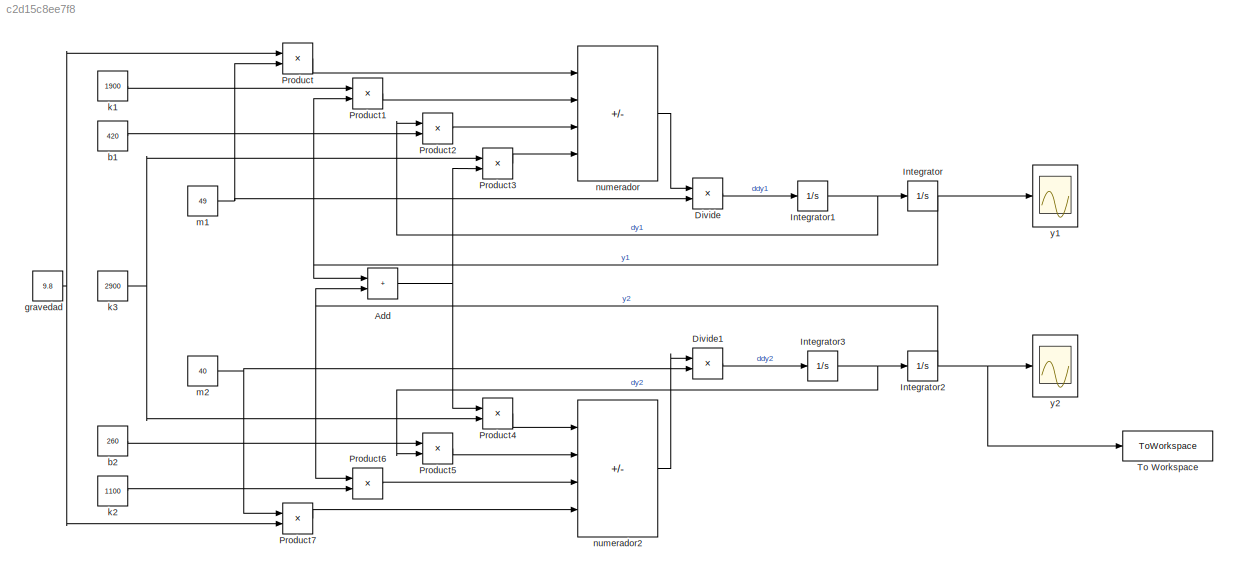
MODEL slx_c2d15c8ee7f8
KIND model
CONFIG AbsTol = auto
CONFIG EnableMultiTasking = off
CONFIG FixedStep = auto
CONFIG MaxStep = auto
CONFIG MinStep = auto
CONFIG RelTol = 1e-3
CONFIG SampleTimeConstraint = Unconstrained
CONFIG SolverName = FixedStepAuto
CONFIG StartTime = 0.0
CONFIG StopTime = 2
BLOCK [Sum] Add
  IconShape = rectangular
BLOCK [Product] Divide
  Inputs = */
BLOCK [Product] Divide1
  Inputs = */
BLOCK [Integrator] Integrator
BLOCK [Integrator] Integrator1
BLOCK [Integrator] Integrator2
BLOCK [Integrator] Integrator3
BLOCK [Product] Product
BLOCK [Product] Product1
BLOCK [Product] Product2
BLOCK [Product] Product3
BLOCK [Product] Product4
BLOCK [Product] Product5
BLOCK [Product] Product6
BLOCK [Product] Product7
BLOCK [ToWorkspace] To Workspace
  FixptAsFi = on
  MaxDataPoints = inf
  SampleTime = -1
  Save2DSignal = 2-D array (concatenate along first dimension)
  VariableName = y2_out
BLOCK [Constant] b1
  Value = 420
BLOCK [Constant] b2
  Value = 260
BLOCK [Constant] gravedad
  Value = 9.8
BLOCK [Constant] k1
  Value = 1900
BLOCK [Constant] k2
  Value = 1100
BLOCK [Constant] k3
  Value = 2900
BLOCK [Constant] m1
  Value = 49
BLOCK [Constant] m2
  Value = 40
BLOCK [Sum] numerador
  IconShape = rectangular
  Inputs = ----
BLOCK [Sum] numerador2
  IconShape = rectangular
  Inputs = ----
BLOCK [Scope] y1
  ActiveDisplayYMaximum = 1
  ActiveDisplayYMinimum = -1
  ContainerLayout = {"WindowBounds":[1044,1009,1278,765],"gridDimensions":{"w":1,"h":2},"tileCount":2,"tileCoverage":[1,2],"columnWeights":1,"rowWeights":[0.5,0.5],"tileOccupancy":[{"children":{"id":"/y1"}},{"children":{"id":"/y2"}}]}
  Description = y
  Floating = off
  GraphicalSettings = {"Style":{"BackgroundColor":[0.12941176470588237,0.12941176470588237,0.12941176470588237],"AxesColor":[0.07058823529411765,0.07058823529411765,0.07058823529411765],"LabelsColor":[0.8509803921568627,0.8509803921568627,0.8509803921568627],"PreserveColors":false,"Visible":[true],"LineStyle":["-"],"LineWidth":[1.5],"BarWidth":[0.9],"LineColor":["auto"],"LineFaceAlpha":[1],"LineEdgeAlpha":[1],"Marker":...<+1996ch>
  MultipleDisplayCache = [{"MaxYLimMag":1,"MaxYLimReal":1,"MinYLimMag":0,"MinYLimReal":-1,"PlotAsMagnitudePhase":false,"ShowGrid":true,"ShowLegend":false,"Title":"%<SignalLabel>","YLabel":""}]
  NumInputPorts = 1
  ScopeFrameLocation = window
  WasSavedAsWebScope = on
  WindowPosition = [726.000000,491.000000,560.000000,421.000000,]
BLOCK [Scope] y2
  ActiveDisplayYMaximum = 0.010404234393498314
  ActiveDisplayYMinimum = -0.09363810954148484
  ContainerLayout = {"WindowBounds":[1044,1009,1278,765],"gridDimensions":{"w":1,"h":2},"tileCount":2,"tileCoverage":[1,2],"columnWeights":1,"rowWeights":[0.5,0.5],"tileOccupancy":[{"children":{"id":"/y1"}},{"children":{"id":"/y2"}}]}
  DataLoggingVariableName = ScopeData1
  Description = y
  Floating = off
  GraphicalSettings = {"Style":{"BackgroundColor":[0.12941176470588237,0.12941176470588237,0.12941176470588237],"AxesColor":[0.07058823529411765,0.07058823529411765,0.07058823529411765],"LabelsColor":[0.8509803921568627,0.8509803921568627,0.8509803921568627],"PreserveColors":false,"Visible":[true],"LineStyle":["-"],"LineWidth":[1.5],"BarWidth":[0.9],"LineColor":["auto"],"LineFaceAlpha":[1],"LineEdgeAlpha":[1],"Marker":...<+1996ch>
  MultipleDisplayCache = [{"MaxYLimMag":0.09363810954148484,"MaxYLimReal":0.010404234393498314,"MinYLimMag":0,"MinYLimReal":-0.09363810954148484,"PlotAsMagnitudePhase":false,"ShowGrid":true,"ShowLegend":false,"Title":"%<SignalLabel>","YLabel":""}]
  NumInputPorts = 1
  ScopeFrameLocation = window
  WasSavedAsWebScope = on
  WindowPosition = [1125.000000,292.000000,676.000000,500.000000,]
NET Add:1 -> Product3:2, Product4:1
LINE Divide1:1 -> Integrator3:1
LINE Divide:1 -> Integrator1:1
NET Integrator1:1 -> Integrator:1, Product2:1
NET Integrator2:1 -> Add:2, Product6:1, To Workspace:1, y2:1
NET Integrator3:1 -> Integrator2:1, Product5:2
NET Integrator:1 -> Add:1, Product1:2, y1:1
LINE Product1:1 -> numerador:2
LINE Product2:1 -> numerador:3
LINE Product3:1 -> numerador:4
LINE Product4:1 -> numerador2:1
LINE Product5:1 -> numerador2:2
LINE Product6:1 -> numerador2:3
LINE Product7:1 -> numerador2:4
LINE Product:1 -> numerador:1
LINE b1:1 -> Product2:2
LINE b2:1 -> Product5:1
NET gravedad:1 -> Product7:2, Product:1
LINE k1:1 -> Product1:1
LINE k2:1 -> Product6:2
NET k3:1 -> Product3:1, Product4:2
NET m1:1 -> Divide:2, Product:2
NET m2:1 -> Divide1:2, Product7:1
LINE numerador2:1 -> Divide1:1
LINE numerador:1 -> Divide:1
note: NET lines group one-source signal fan-out (src -> all destinations, sorted); 1:1 wires keep LINE
